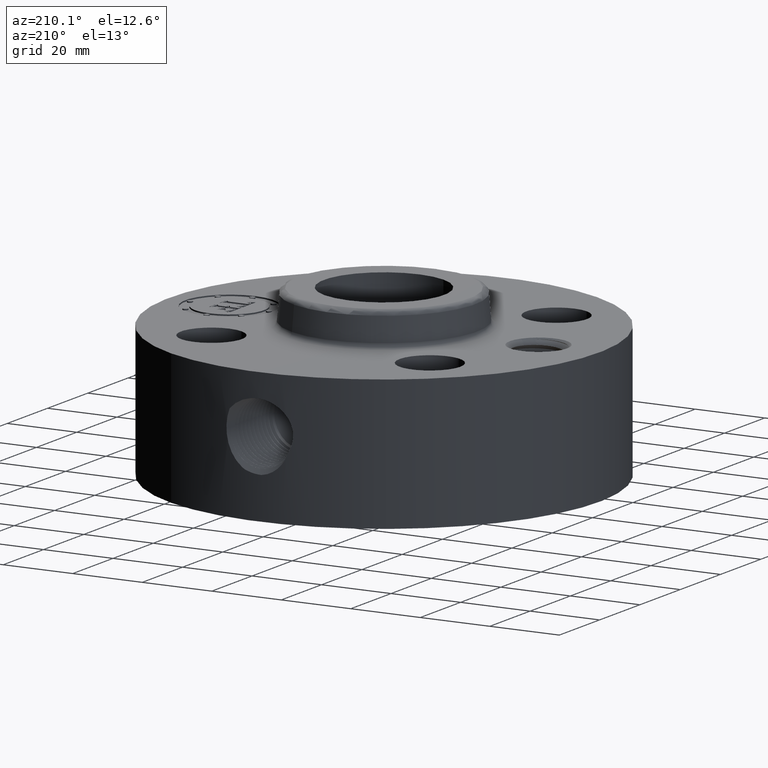
[diagram: clean part render]
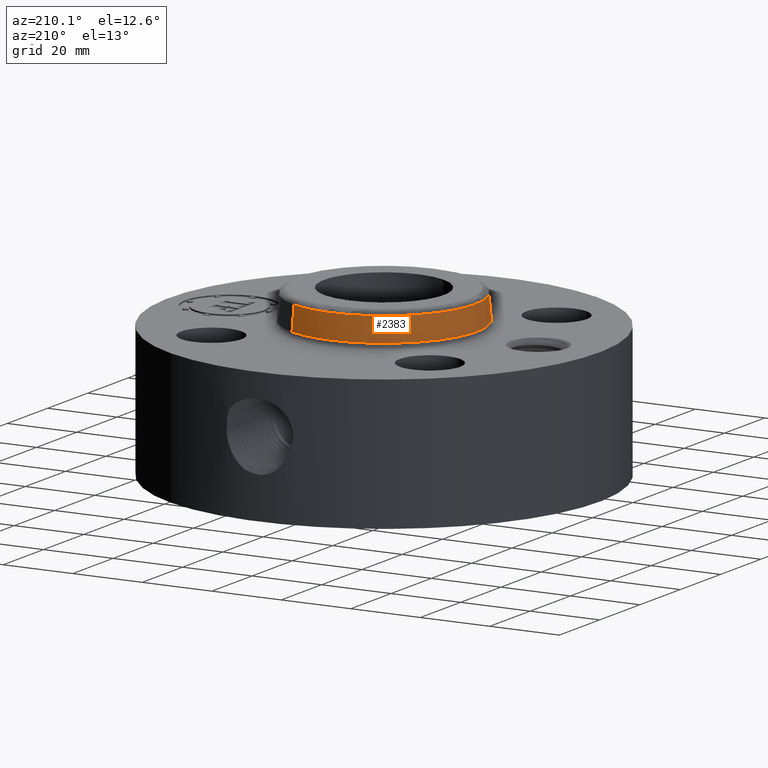
[diagram: same view with one face highlighted and labeled with its STEP entity id]
A machine part, auxiliary view. The second image highlights one B-rep face of the part: STEP entity #2383.
In plain terms, the highlighted conical surface has half-angle 5 deg.
Its self-contained STEP definition (entity closure, byte-faithful):
#1778=AXIS2_PLACEMENT_3D('Circle Axis2P3D',#1776,#1777,$) ;
#2344=AXIS2_PLACEMENT_3D('Cone Axis2P3D',#2341,#2342,#2343) ;
#2374=AXIS2_PLACEMENT_3D('Circle Axis2P3D',#2372,#2373,$) ;
#1754=CARTESIAN_POINT('Vertex',(0.50589375414,0.926032305444,1.61477065544)) ;
#1761=CARTESIAN_POINT('Vertex',(-0.50589375414,-0.926032305444,1.61477065544)) ;
#1776=CARTESIAN_POINT('Axis2P3D Location',(0.,0.,1.61477065544)) ;
#2341=CARTESIAN_POINT('Axis2P3D Location',(0.,0.,1.88522934457)) ;
#2346=CARTESIAN_POINT('Line Origine',(0.500221653992,0.915649595768,1.75000000001)) ;
#2350=CARTESIAN_POINT('Vertex',(0.494549553845,0.905266886091,1.88522934457)) ;
#2357=CARTESIAN_POINT('Vertex',(-0.494549553845,-0.905266886091,1.88522934457)) ;
#2360=CARTESIAN_POINT('Line Origine',(-0.500221653992,-0.915649595768,1.75000000001)) ;
#2372=CARTESIAN_POINT('Axis2P3D Location',(0.,0.,1.88522934457)) ;
#1777=DIRECTION('Axis2P3D Direction',(0.,0.,-0.0393700787402)) ;
#2342=DIRECTION('Axis2P3D Direction',(0.,0.,-0.0393700787402)) ;
#2343=DIRECTION('Axis2P3D XDirection',(-0.0188750212049,-0.0345504945626,0.)) ;
#2347=DIRECTION('Vector Direction',(0.00164506649249,0.0030112740159,-0.0392202637044)) ;
#2361=DIRECTION('Vector Direction',(-0.00164506649249,-0.0030112740159,-0.0392202637044)) ;
#2373=DIRECTION('Axis2P3D Direction',(0.,0.,-0.0393700787402)) ;
#2348=VECTOR('Line Direction',#2347,0.0393700787402) ;
#2362=VECTOR('Line Direction',#2361,0.0393700787402) ;
#2378=ORIENTED_EDGE('',*,*,#1780,.F.) ;
#2379=ORIENTED_EDGE('',*,*,#2364,.T.) ;
#2380=ORIENTED_EDGE('',*,*,#2376,.T.) ;
#2381=ORIENTED_EDGE('',*,*,#2352,.F.) ;
#2383=ADVANCED_FACE('PartBody',(#2382),#2345,.T.) ;
#1779=CIRCLE('generated circle',#1778,1.05520818856) ;
#2375=CIRCLE('generated circle',#2374,1.03154611931) ;
#2345=CONICAL_SURFACE('Cone',#2344,1.03154611931,0.0872664625997) ;
#1780=EDGE_CURVE('',#1762,#1755,#1779,.T.) ;
#2352=EDGE_CURVE('',#1755,#2351,#2349,.F.) ;
#2364=EDGE_CURVE('',#1762,#2358,#2363,.F.) ;
#2376=EDGE_CURVE('',#2358,#2351,#2375,.T.) ;
#2377=EDGE_LOOP('',(#2378,#2379,#2380,#2381)) ;
#2382=FACE_OUTER_BOUND('',#2377,.T.) ;
#2349=LINE('Line',#2346,#2348) ;
#2363=LINE('Line',#2360,#2362) ;
#1755=VERTEX_POINT('',#1754) ;
#1762=VERTEX_POINT('',#1761) ;
#2351=VERTEX_POINT('',#2350) ;
#2358=VERTEX_POINT('',#2357) ;